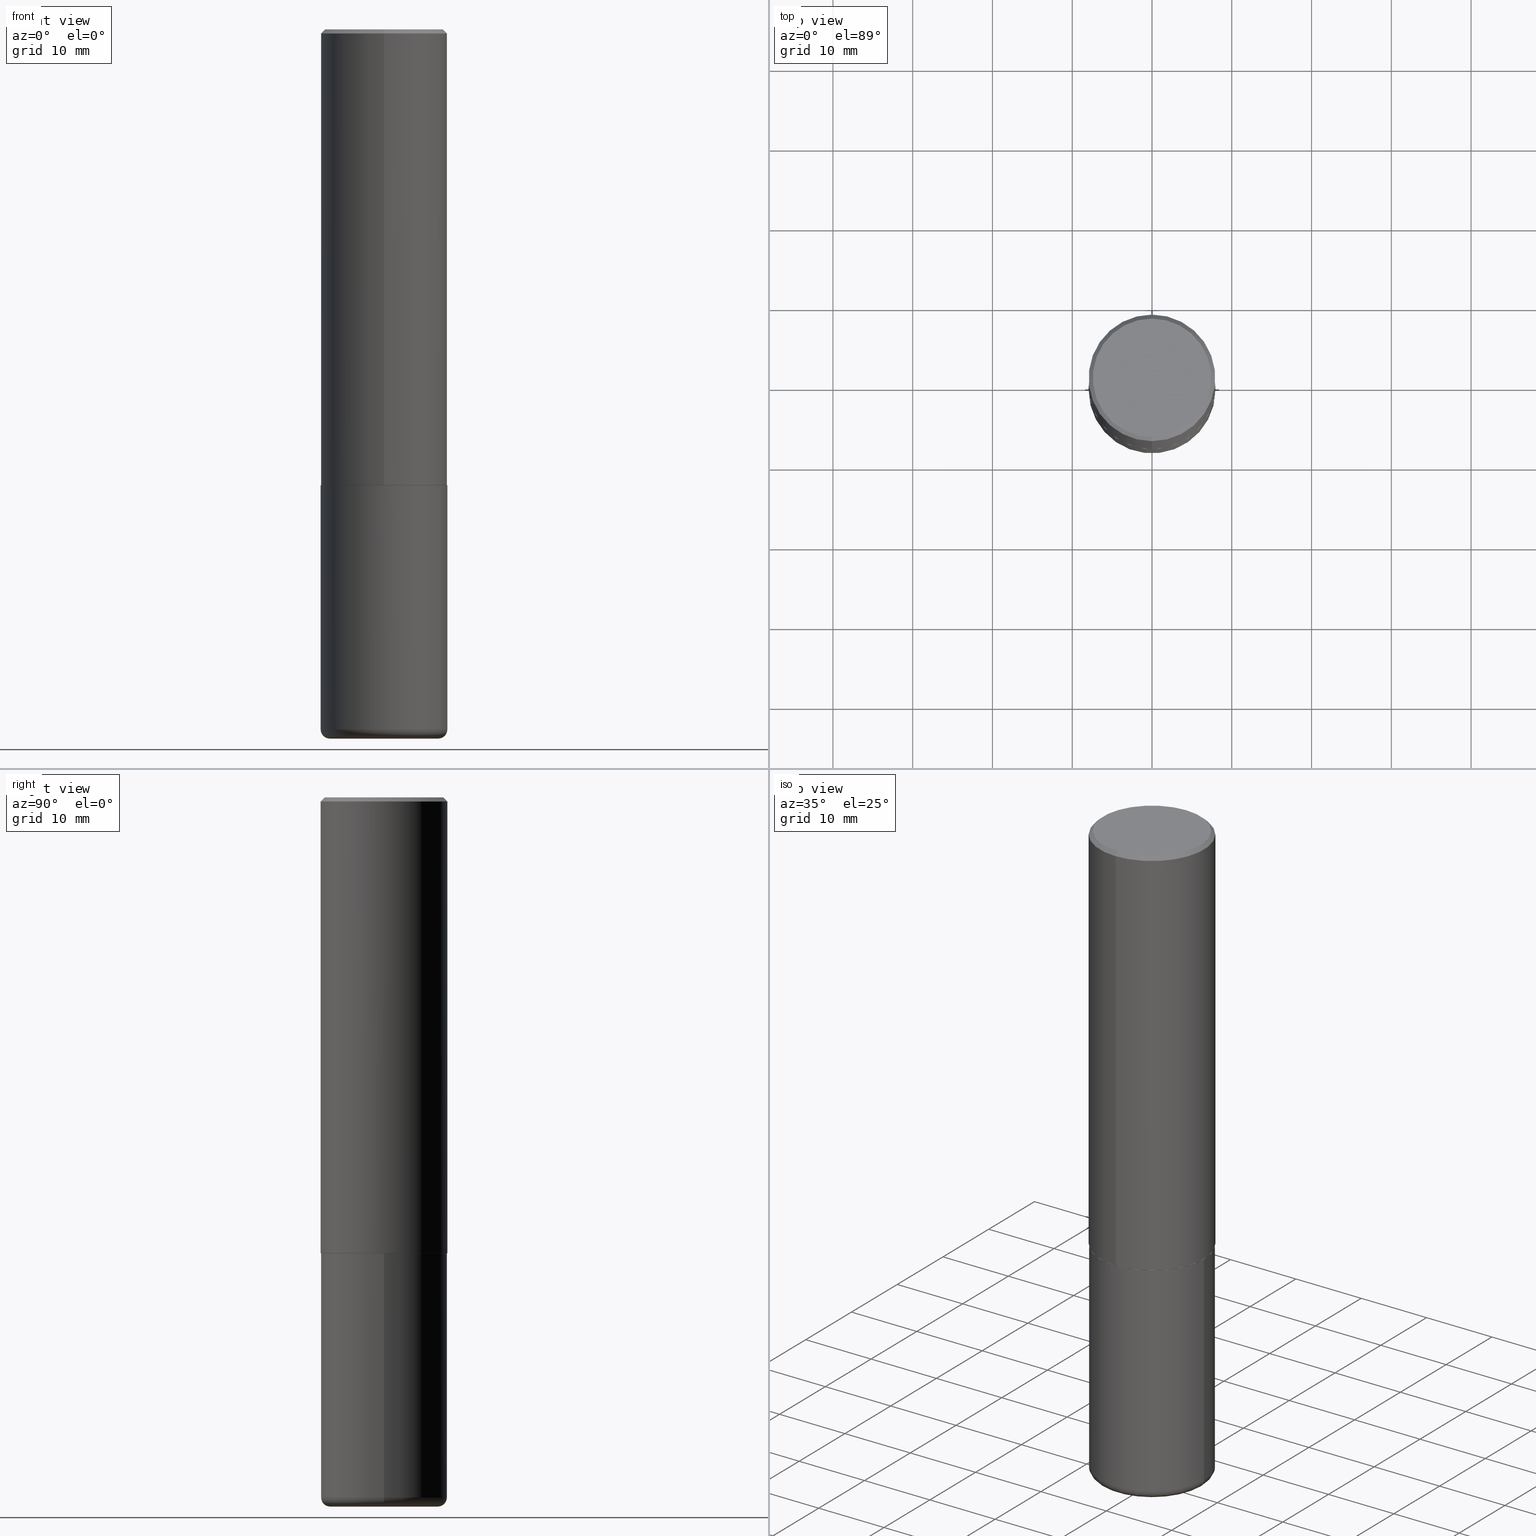
[diagram: canonical four-view strip — front | top / right | iso, engineering-drawing reading convention]
A machine part, canonical four-view strip (front | top / right | iso — engineering-drawing reading convention). The complete STEP part file that produces these views, byte-faithful:
ISO-10303-21;
HEADER;
FILE_DESCRIPTION (( 'STEP AP203' ),
    '1' );
FILE_NAME ('38280.STEP',
    '2024-03-02T20:38:31',
    ( '' ),
    ( '' ),
    'SwSTEP 2.0',
    'SolidWorks 2023',
    '' );
FILE_SCHEMA (( 'CONFIG_CONTROL_DESIGN' ));
ENDSEC;

DATA;
#1 = DIRECTION ( 'NONE',  ( 2.446270449397526442E-29, -3.490333340136305154E-15, -1.000000000000000000 ) ) ;
#2 = DIRECTION ( 'NONE',  ( -6.982962677686265922E-15, -1.000000000000000000, 3.507991003100177457E-15 ) ) ;
#3 = ADVANCED_BREP_SHAPE_REPRESENTATION ( '38280', ( #76, #218, #415 ), #137 ) ;
#4 = CIRCLE ( 'NONE', #255, 0.3125000000000000000 ) ;
#5 = EDGE_CURVE ( 'NONE', #77, #182, #117, .T. ) ;
#6 = DIRECTION ( 'NONE',  ( -2.446270449397526442E-29, 3.490333340136305154E-15, 1.000000000000000000 ) ) ;
#7 = DATE_AND_TIME ( #203, #303 ) ;
#8 = ORIENTED_EDGE ( 'NONE', *, *, #45, .T. ) ;
#9 = CARTESIAN_POINT ( 'NONE',  ( 5.502304813916556222E-29, -7.855833012397075293E-15, -2.249999999999999556 ) ) ;
#10 = VERTEX_POINT ( 'NONE', #189 ) ;
#11 = PRODUCT_DEFINITION_FORMATION_WITH_SPECIFIED_SOURCE ( 'ANY', '', #362, .NOT_KNOWN. ) ;
#12 =( CONVERSION_BASED_UNIT ( 'INCH', #332 ) LENGTH_UNIT ( ) NAMED_UNIT ( #245 ) );
#13 = VERTEX_POINT ( 'NONE', #374 ) ;
#14 = PERSON_AND_ORGANIZATION_ROLE ( 'creator' ) ;
#15 = ORIENTED_EDGE ( 'NONE', *, *, #334, .T. ) ;
#16 = DIRECTION ( 'NONE',  ( 2.438088387897960049E-29, -3.491481338843145188E-15, -1.000000000000000000 ) ) ;
#17 = EDGE_CURVE ( 'NONE', #377, #379, #145, .T. ) ;
#18 = VECTOR ( 'NONE', #236, 39.37007874015748143 ) ;
#19 = ORIENTED_EDGE ( 'NONE', *, *, #355, .T. ) ;
#20 = PERSON ( 'UNSPECIFIED', 'UNSPECIFIED', 'UNSPECIFIED', ('UNSPECIFIED'), ('UNSPECIFIED'), ('UNSPECIFIED') ) ;
#21 = ORIENTED_EDGE ( 'NONE', *, *, #190, .T. ) ;
#22 = ORIENTED_EDGE ( 'NONE', *, *, #62, .T. ) ;
#23 = EDGE_CURVE ( 'NONE', #312, #274, #383, .T. ) ;
#24 = CARTESIAN_POINT ( 'NONE',  ( 2.213340621892766504E-15, 0.3114999999999921720, -2.250000000000000888 ) ) ;
#25 = DIRECTION ( 'NONE',  ( 1.000000000000000000, -6.982962677686265133E-15, 0.000000000000000000 ) ) ;
#26 = CIRCLE ( 'NONE', #128, 0.2924999999999999267 ) ;
#27 = PLANE ( 'NONE',  #200 ) ;
#28 = DIRECTION ( 'NONE',  ( -2.446270449397526442E-29, 3.490333340136305154E-15, 1.000000000000000000 ) ) ;
#29 = DIRECTION ( 'NONE',  ( -6.982962677686265133E-15, -1.000000000000000000, 3.490333340136304366E-15 ) ) ;
#30 = AXIS2_PLACEMENT_3D ( 'NONE', #82, #373, #131 ) ;
#31 = DIRECTION ( 'NONE',  ( -2.446270449397526442E-29, 3.490333340136305154E-15, 1.000000000000000000 ) ) ;
#32 = CARTESIAN_POINT ( 'NONE',  ( 4.892540898795069594E-31, -6.980666680272634172E-17, -0.02000000000000006981 ) ) ;
#33 = APPROVAL ( #149, 'UNSPECIFIED' ) ;
#34 = AXIS2_PLACEMENT_3D ( 'NONE', #286, #160, #233 ) ;
#35 = SECURITY_CLASSIFICATION ( '', '', #107 ) ;
#36 = ORIENTED_EDGE ( 'NONE', *, *, #393, .F. ) ;
#37 = DIRECTION ( 'NONE',  ( -4.851104656540959542E-15, -0.7071067811865493491, -0.7071067811865457964 ) ) ;
#38 = PERSON_AND_ORGANIZATION ( #20, #407 ) ;
#39 = ORIENTED_EDGE ( 'NONE', *, *, #62, .F. ) ;
#40 = AXIS2_PLACEMENT_3D ( 'NONE', #262, #16, #151 ) ;
#41 = CC_DESIGN_DATE_AND_TIME_ASSIGNMENT ( #329, #140, ( #289 ) ) ;
#42 = EDGE_LOOP ( 'NONE', ( #410, #395, #51, #302 ) ) ;
#43 = COORDINATED_UNIVERSAL_TIME_OFFSET ( 5, 0, .BEHIND. ) ;
#44 = ORIENTED_EDGE ( 'NONE', *, *, #297, .T. ) ;
#45 = EDGE_CURVE ( 'NONE', #338, #278, #159, .T. ) ;
#46 = CARTESIAN_POINT ( 'NONE',  ( 2.220446049250313475E-15, 0.3125000000000001665, -1.090729168792595755E-15 ) ) ;
#47 = AXIS2_PLACEMENT_3D ( 'NONE', #331, #96, #198 ) ;
#48 = SHAPE_DEFINITION_REPRESENTATION ( #69, #3 ) ;
#49 = EDGE_LOOP ( 'NONE', ( #313, #177, #184, #307 ) ) ;
#50 = CARTESIAN_POINT ( 'NONE',  ( 4.892540898795069594E-31, -6.980666680272634172E-17, -0.02000000000000006981 ) ) ;
#51 = ORIENTED_EDGE ( 'NONE', *, *, #91, .T. ) ;
#52 = ORIENTED_EDGE ( 'NONE', *, *, #246, .F. ) ;
#53 = FACE_OUTER_BOUND ( 'NONE', #359, .T. ) ;
#54 = AXIS2_PLACEMENT_3D ( 'NONE', #175, #6, #243 ) ;
#55 = CONICAL_SURFACE ( 'NONE', #34, 0.3114999999999999991, 0.7853981633974141952 ) ;
#56 = DIRECTION ( 'NONE',  ( -6.982962677686265922E-15, -1.000000000000000000, 3.496765431890253764E-15 ) ) ;
#57 = ADVANCED_FACE ( 'NONE', ( #125 ), #339, .F. ) ;
#58 = CARTESIAN_POINT ( 'NONE',  ( 0.2675000000000000155, -1.393101054198414437E-14, -3.454999999999999627 ) ) ;
#59 = AXIS2_PLACEMENT_3D ( 'NONE', #259, #391, #97 ) ;
#60 = LOCAL_TIME ( 15, 38, 31.00000000000000000, #43 ) ;
#61 = CYLINDRICAL_SURFACE ( 'NONE', #291, 0.3125000000000001665 ) ;
#62 = EDGE_CURVE ( 'NONE', #13, #182, #87, .T. ) ;
#63 = DIRECTION ( 'NONE',  ( 2.446270449397526442E-29, -3.490333340136305154E-15, -1.000000000000000000 ) ) ;
#64 = DIRECTION ( 'NONE',  ( -2.446270449397526442E-29, 3.490333340136305154E-15, 1.000000000000000000 ) ) ;
#65 = COORDINATED_UNIVERSAL_TIME_OFFSET ( 5, 0, .BEHIND. ) ;
#66 = EDGE_LOOP ( 'NONE', ( #187, #19, #411, #108 ) ) ;
#67 = CIRCLE ( 'NONE', #204, 0.3125000000000000000 ) ;
#68 = ADVANCED_FACE ( 'NONE', ( #115 ), #324, .T. ) ;
#69 = PRODUCT_DEFINITION_SHAPE ( 'NONE', 'NONE',  #289 ) ;
#70 = CARTESIAN_POINT ( 'NONE',  ( 0.3125000000000000000, -1.003800884917403364E-14, -2.249999999999999556 ) ) ;
#71 = CARTESIAN_POINT ( 'NONE',  ( 5.504108511144434074E-29, -7.853250015306685809E-15, -2.249999999999999556 ) ) ;
#72 = PERSON_AND_ORGANIZATION_ROLE ( 'design_owner' ) ;
#73 = DIRECTION ( 'NONE',  ( -2.445468806185136597E-29, 3.491481338843145583E-15, 1.000000000000000000 ) ) ;
#74 = CIRCLE ( 'NONE', #173, 0.04500000000000013711 ) ;
#75 = DIRECTION ( 'NONE',  ( 0.000000000000000000, 0.000000000000000000, 1.000000000000000000 ) ) ;
#76 = MANIFOLD_SOLID_BREP ( 'Body-Move/Copy2[1]', #271 ) ;
#77 = VERTEX_POINT ( 'NONE', #304 ) ;
#78 = ADVANCED_FACE ( 'NONE', ( #345 ), #378, .T. ) ;
#79 = DIRECTION ( 'NONE',  ( -4.937700262164378437E-15, -0.7071067811865208164, 0.7071067811865739960 ) ) ;
#80 = VECTOR ( 'NONE', #260, 39.37007874015748854 ) ;
#81 = CLOSED_SHELL ( 'NONE', ( #178, #194, #409, #118, #227, #256, #280, #364 ) ) ;
#82 = CARTESIAN_POINT ( 'NONE',  ( 5.501662240695034719E-29, -7.849759681966548232E-15, -2.248999999999999222 ) ) ;
#83 = PERSON_AND_ORGANIZATION ( #20, #407 ) ;
#84 = ORIENTED_EDGE ( 'NONE', *, *, #334, .F. ) ;
#85 = EDGE_LOOP ( 'NONE', ( #298, #36 ) ) ;
#86 = CARTESIAN_POINT ( 'NONE',  ( -7.227211954301492276E-46, 1.031177024868314748E-31, 2.954379780895211224E-17 ) ) ;
#87 = CIRCLE ( 'NONE', #413, 0.3125000000000000000 ) ;
#88 = CC_DESIGN_PERSON_AND_ORGANIZATION_ASSIGNMENT ( #248, #354, ( #35 ) ) ;
#89 = DIRECTION ( 'NONE',  ( 2.438088387897960049E-29, -3.491481338843145188E-15, -1.000000000000000000 ) ) ;
#90 = LINE ( 'NONE', #24, #80 ) ;
#91 = EDGE_CURVE ( 'NONE', #377, #306, #315, .T. ) ;
#92 = DIRECTION ( 'NONE',  ( 1.000000000000000000, -6.982962677686269077E-15, 0.000000000000000000 ) ) ;
#93 = LINE ( 'NONE', #169, #18 ) ;
#94 = AXIS2_PLACEMENT_3D ( 'NONE', #228, #310, #25 ) ;
#95 = FACE_OUTER_BOUND ( 'NONE', #254, .T. ) ;
#96 = DIRECTION ( 'NONE',  ( -2.445468806185136597E-29, 3.491481338843145583E-15, 1.000000000000000000 ) ) ;
#97 = DIRECTION ( 'NONE',  ( 1.000000000000000000, -6.982962677686265922E-15, 4.883557194083112340E-29 ) ) ;
#98 = DIRECTION ( 'NONE',  ( -2.445468806185136597E-29, 3.491481338843145583E-15, 1.000000000000000000 ) ) ;
#99 = ORIENTED_EDGE ( 'NONE', *, *, #23, .T. ) ;
#100 = PLANE ( 'NONE',  #375 ) ;
#101 = APPROVAL_DATE_TIME ( #300, #229 ) ;
#102 = EDGE_CURVE ( 'NONE', #306, #274, #123, .T. ) ;
#103 = CIRCLE ( 'NONE', #136, 0.3114999999999999991 ) ;
#104 = FACE_OUTER_BOUND ( 'NONE', #85, .T. ) ;
#105 = APPROVAL_STATUS ( 'not_yet_approved' ) ;
#106 = ORIENTED_EDGE ( 'NONE', *, *, #265, .T. ) ;
#107 = SECURITY_CLASSIFICATION_LEVEL ( 'unclassified' ) ;
#108 = ORIENTED_EDGE ( 'NONE', *, *, #45, .F. ) ;
#109 =( NAMED_UNIT ( * ) SI_UNIT ( $, .STERADIAN. ) SOLID_ANGLE_UNIT ( ) );
#110 = ORIENTED_EDGE ( 'NONE', *, *, #382, .T. ) ;
#111 = DIRECTION ( 'NONE',  ( 6.982962677686265922E-15, 1.000000000000000000, -3.490333340136305154E-15 ) ) ;
#112 = AXIS2_PLACEMENT_3D ( 'NONE', #58, #192, #414 ) ;
#113 = CC_DESIGN_PERSON_AND_ORGANIZATION_ASSIGNMENT ( #399, #14, ( #289 ) ) ;
#114 = APPROVAL_ROLE ( '' ) ;
#115 = FACE_OUTER_BOUND ( 'NONE', #139, .T. ) ;
#116 = ORIENTED_EDGE ( 'NONE', *, *, #219, .T. ) ;
#117 = LINE ( 'NONE', #46, #321 ) ;
#118 = ADVANCED_FACE ( 'NONE', ( #164 ), #165, .T. ) ;
#119 = CIRCLE ( 'NONE', #129, 0.3125000000000000000 ) ;
#120 = CC_DESIGN_SECURITY_CLASSIFICATION ( #35, ( #11 ) ) ;
#121 = VERTEX_POINT ( 'NONE', #263 ) ;
#122 = DIRECTION ( 'NONE',  ( -2.446270449397526442E-29, 3.490333340136305154E-15, 1.000000000000000000 ) ) ;
#123 = LINE ( 'NONE', #261, #346 ) ;
#124 = CALENDAR_DATE ( 2024, 2, 3 ) ;
#125 = FACE_OUTER_BOUND ( 'NONE', #183, .T. ) ;
#126 = UNCERTAINTY_MEASURE_WITH_UNIT (LENGTH_MEASURE( 1.000000000000000082E-05 ), #12, 'distance_accuracy_value', 'NONE');
#127 = CARTESIAN_POINT ( 'NONE',  ( 8.559140821647976968E-29, -1.222018468595100934E-14, -3.500000000000000000 ) ) ;
#128 = AXIS2_PLACEMENT_3D ( 'NONE', #385, #64, #247 ) ;
#129 = AXIS2_PLACEMENT_3D ( 'NONE', #344, #98, #241 ) ;
#130 = DIRECTION ( 'NONE',  ( -2.445468806185136597E-29, 3.491481338843145583E-15, 1.000000000000000000 ) ) ;
#131 = DIRECTION ( 'NONE',  ( -6.982962677686265922E-15, -1.000000000000000000, 3.496765431890253764E-15 ) ) ;
#132 = CARTESIAN_POINT ( 'NONE',  ( -0.2675000000000000155, -1.008105242212274537E-14, -3.500000000000000000 ) ) ;
#133 = APPLICATION_CONTEXT ( 'configuration controlled 3d designs of mechanical parts and assemblies' ) ;
#134 = DIRECTION ( 'NONE',  ( -2.446270449397526161E-29, 3.490333340136305154E-15, 1.000000000000000000 ) ) ;
#135 = CARTESIAN_POINT ( 'NONE',  ( 5.504108511144434074E-29, -7.853250015306685809E-15, -2.249999999999999556 ) ) ;
#136 = AXIS2_PLACEMENT_3D ( 'NONE', #71, #209, #2 ) ;
#137 =( GEOMETRIC_REPRESENTATION_CONTEXT ( 3 ) GLOBAL_UNCERTAINTY_ASSIGNED_CONTEXT ( ( #126 ) ) GLOBAL_UNIT_ASSIGNED_CONTEXT ( ( #12, #292, #109 ) ) REPRESENTATION_CONTEXT ( 'NONE', 'WORKASPACE' ) );
#138 = APPLICATION_PROTOCOL_DEFINITION ( 'international standard', 'config_control_design', 1994, #384 ) ;
#139 = EDGE_LOOP ( 'NONE', ( #277, #295, #84, #403 ) ) ;
#140 = DATE_TIME_ROLE ( 'creation_date' ) ;
#141 = ORIENTED_EDGE ( 'NONE', *, *, #297, .F. ) ;
#142 = DIRECTION ( 'NONE',  ( 4.937700262164543309E-15, 0.7071067811865444641, -0.7071067811865506814 ) ) ;
#143 = VECTOR ( 'NONE', #142, 39.37007874015748143 ) ;
#144 = CC_DESIGN_APPROVAL ( #201, ( #35 ) ) ;
#145 = CIRCLE ( 'NONE', #257, 0.2675000000000000155 ) ;
#146 = DIRECTION ( 'NONE',  ( -6.982962677686265922E-15, -1.000000000000000000, 3.490333340136305154E-15 ) ) ;
#147 = DATE_AND_TIME ( #238, #224 ) ;
#148 = ORIENTED_EDGE ( 'NONE', *, *, #17, .F. ) ;
#149 = APPROVAL_STATUS ( 'not_yet_approved' ) ;
#150 = ORIENTED_EDGE ( 'NONE', *, *, #186, .F. ) ;
#151 = DIRECTION ( 'NONE',  ( -1.000000000000000000, 6.982962677686265922E-15, -4.876176775795935793E-29 ) ) ;
#152 = CIRCLE ( 'NONE', #212, 0.2924999999999999267 ) ;
#153 = ORIENTED_EDGE ( 'NONE', *, *, #199, .F. ) ;
#154 = DIRECTION ( 'NONE',  ( -2.446270449397526161E-29, 3.490333340136305154E-15, 1.000000000000000000 ) ) ;
#155 = ORIENTED_EDGE ( 'NONE', *, *, #393, .T. ) ;
#156 = CARTESIAN_POINT ( 'NONE',  ( 0.2675000000000000155, -1.408812720223208600E-14, -3.500000000000000000 ) ) ;
#157 = TOROIDAL_SURFACE ( 'NONE', #59, 0.2675000000000000155, 0.04500000000000010242 ) ;
#158 = LOCAL_TIME ( 15, 38, 31.00000000000000000, #176 ) ;
#159 = LINE ( 'NONE', #282, #357 ) ;
#160 = DIRECTION ( 'NONE',  ( -2.446270449397526442E-29, 3.490333340136305154E-15, 1.000000000000000000 ) ) ;
#161 = CC_DESIGN_PERSON_AND_ORGANIZATION_ASSIGNMENT ( #402, #294, ( #11 ) ) ;
#162 = DIRECTION ( 'NONE',  ( -6.982962677686266711E-15, -1.000000000000000000, 3.490333340136305549E-15 ) ) ;
#163 = CARTESIAN_POINT ( 'NONE',  ( 0.000000000000000000, 0.000000000000000000, 0.000000000000000000 ) ) ;
#164 = FACE_OUTER_BOUND ( 'NONE', #205, .T. ) ;
#165 = CONICAL_SURFACE ( 'NONE', #398, 0.3125000000000000000, 0.7853981633974473908 ) ;
#166 = CARTESIAN_POINT ( 'NONE',  ( 2.182175836776958741E-15, 0.3124999999999999445, -0.02000000000000116268 ) ) ;
#167 = EDGE_CURVE ( 'NONE', #379, #253, #74, .T. ) ;
#168 = LINE ( 'NONE', #328, #319 ) ;
#169 = CARTESIAN_POINT ( 'NONE',  ( -0.3125000000000000000, 2.220446049250313081E-15, -1.537167215704658232E-29 ) ) ;
#170 = CC_DESIGN_DATE_AND_TIME_ASSIGNMENT ( #7, #225, ( #35 ) ) ;
#171 = DIRECTION ( 'NONE',  ( -2.445468806185136597E-29, 3.491481338843145583E-15, 1.000000000000000000 ) ) ;
#172 = DIRECTION ( 'NONE',  ( 6.982962677686265133E-15, 1.000000000000000000, -3.496765431890256920E-15 ) ) ;
#173 = AXIS2_PLACEMENT_3D ( 'NONE', #381, #320, #386 ) ;
#174 = EDGE_CURVE ( 'NONE', #121, #10, #152, .T. ) ;
#175 = CARTESIAN_POINT ( 'NONE',  ( 5.504108511144434074E-29, -7.853250015306685809E-15, -2.249999999999999556 ) ) ;
#176 = COORDINATED_UNIVERSAL_TIME_OFFSET ( 5, 0, .BEHIND. ) ;
#177 = ORIENTED_EDGE ( 'NONE', *, *, #418, .T. ) ;
#178 = ADVANCED_FACE ( 'NONE', ( #231 ), #55, .T. ) ;
#179 = DIRECTION ( 'NONE',  ( -2.446270449397526161E-29, 3.490333340136305154E-15, 1.000000000000000000 ) ) ;
#180 = ORIENTED_EDGE ( 'NONE', *, *, #371, .T. ) ;
#181 = PERSON_AND_ORGANIZATION ( #20, #407 ) ;
#182 = VERTEX_POINT ( 'NONE', #166 ) ;
#183 = EDGE_LOOP ( 'NONE', ( #258, #99 ) ) ;
#184 = ORIENTED_EDGE ( 'NONE', *, *, #102, .T. ) ;
#185 = AXIS2_PLACEMENT_3D ( 'NONE', #283, #89, #316 ) ;
#186 = EDGE_CURVE ( 'NONE', #379, #377, #230, .T. ) ;
#187 = ORIENTED_EDGE ( 'NONE', *, *, #317, .T. ) ;
#188 = ORIENTED_EDGE ( 'NONE', *, *, #102, .F. ) ;
#189 = CARTESIAN_POINT ( 'NONE',  ( 2.112346210000095443E-15, 0.2924999999999999267, -9.913787041809170300E-16 ) ) ;
#190 = EDGE_CURVE ( 'NONE', #278, #77, #290, .T. ) ;
#191 = AXIS2_PLACEMENT_3D ( 'NONE', #9, #171, #361 ) ;
#192 = DIRECTION ( 'NONE',  ( -6.982962677686266711E-15, -1.000000000000000000, 3.491481338843145583E-15 ) ) ;
#193 = APPROVAL_PERSON_ORGANIZATION ( #365, #33, #404 ) ;
#194 = ADVANCED_FACE ( 'NONE', ( #352 ), #61, .T. ) ;
#195 = DIRECTION ( 'NONE',  ( -2.446270449397526442E-29, 3.490333340136305154E-15, 1.000000000000000000 ) ) ;
#196 = DIRECTION ( 'NONE',  ( -2.445468806185136877E-29, 3.491481338843145188E-15, 1.000000000000000000 ) ) ;
#197 = CARTESIAN_POINT ( 'NONE',  ( -2.175192874099216718E-15, -0.3115000000000078817, -2.249999999999998668 ) ) ;
#198 = DIRECTION ( 'NONE',  ( 1.000000000000000000, -6.982962677686265922E-15, 4.883557194083112340E-29 ) ) ;
#199 = EDGE_CURVE ( 'NONE', #10, #121, #26, .T. ) ;
#200 = AXIS2_PLACEMENT_3D ( 'NONE', #293, #360, #111 ) ;
#201 = APPROVAL ( #220, 'UNSPECIFIED' ) ;
#202 = CARTESIAN_POINT ( 'NONE',  ( -0.3125000000000000555, -9.842621976452751474E-15, -3.454999999999999627 ) ) ;
#203 = CALENDAR_DATE ( 2024, 2, 3 ) ;
#204 = AXIS2_PLACEMENT_3D ( 'NONE', #380, #130, #349 ) ;
#205 = EDGE_LOOP ( 'NONE', ( #405, #153, #106, #180 ) ) ;
#206 = APPROVAL_ROLE ( '' ) ;
#207 = ORIENTED_EDGE ( 'NONE', *, *, #174, .T. ) ;
#208 = CARTESIAN_POINT ( 'NONE',  ( 5.504108511144434074E-29, -7.853250015306685809E-15, -2.249999999999999556 ) ) ;
#209 = DIRECTION ( 'NONE',  ( -2.446270449397526442E-29, 3.490333340136305154E-15, 1.000000000000000000 ) ) ;
#210 = CALENDAR_DATE ( 2024, 2, 3 ) ;
#211 = ORIENTED_EDGE ( 'NONE', *, *, #371, .F. ) ;
#212 = AXIS2_PLACEMENT_3D ( 'NONE', #86, #28, #162 ) ;
#213 = DIRECTION ( 'NONE',  ( -2.446270449397526442E-29, 3.490333340136305154E-15, 1.000000000000000000 ) ) ;
#214 = LOCAL_TIME ( 15, 38, 31.00000000000000000, #342 ) ;
#215 = COORDINATED_UNIVERSAL_TIME_OFFSET ( 5, 0, .BEHIND. ) ;
#216 = DATE_AND_TIME ( #124, #214 ) ;
#217 = ORIENTED_EDGE ( 'NONE', *, *, #5, .T. ) ;
#218 = MANIFOLD_SOLID_BREP ( 'Body-Move/Copy2[2]', #81 ) ;
#219 = EDGE_CURVE ( 'NONE', #121, #13, #168, .T. ) ;
#220 = APPROVAL_STATUS ( 'not_yet_approved' ) ;
#221 = DIRECTION ( 'NONE',  ( -2.446270449397526442E-29, 3.490333340136305154E-15, 1.000000000000000000 ) ) ;
#222 = DIRECTION ( 'NONE',  ( 1.000000000000000000, -6.982962677686266711E-15, 4.876176775795936353E-29 ) ) ;
#223 = VECTOR ( 'NONE', #179, 39.37007874015748143 ) ;
#224 = LOCAL_TIME ( 15, 38, 31.00000000000000000, #215 ) ;
#225 = DATE_TIME_ROLE ( 'classification_date' ) ;
#226 = EDGE_LOOP ( 'NONE', ( #21, #217, #39, #141 ) ) ;
#227 = ADVANCED_FACE ( 'NONE', ( #333 ), #269, .T. ) ;
#228 = CARTESIAN_POINT ( 'NONE',  ( 5.502304813916556222E-29, -7.855833012397075293E-15, -2.249999999999999556 ) ) ;
#229 = APPROVAL ( #105, 'UNSPECIFIED' ) ;
#230 = CIRCLE ( 'NONE', #389, 0.2675000000000000155 ) ;
#231 = FACE_OUTER_BOUND ( 'NONE', #66, .T. ) ;
#232 = CYLINDRICAL_SURFACE ( 'NONE', #270, 0.3125000000000000000 ) ;
#233 = DIRECTION ( 'NONE',  ( -6.982962677686265922E-15, -1.000000000000000000, 3.507991003100177457E-15 ) ) ;
#234 = CARTESIAN_POINT ( 'NONE',  ( 5.501662240695034719E-29, -7.849759681966548232E-15, -2.248999999999999222 ) ) ;
#235 = AXIS2_PLACEMENT_3D ( 'NONE', #308, #73, #222 ) ;
#236 = DIRECTION ( 'NONE',  ( -2.445468806185136877E-29, 3.491481338843145188E-15, 1.000000000000000000 ) ) ;
#237 = DIRECTION ( 'NONE',  ( -6.982962677686265922E-15, -1.000000000000000000, 3.507991003100177457E-15 ) ) ;
#238 = CALENDAR_DATE ( 2024, 2, 3 ) ;
#239 = CC_DESIGN_PERSON_AND_ORGANIZATION_ASSIGNMENT ( #181, #72, ( #362 ) ) ;
#240 = ORIENTED_EDGE ( 'NONE', *, *, #199, .T. ) ;
#241 = DIRECTION ( 'NONE',  ( 1.000000000000000000, -6.982962677686269077E-15, 0.000000000000000000 ) ) ;
#242 = CIRCLE ( 'NONE', #191, 0.3125000000000000000 ) ;
#243 = DIRECTION ( 'NONE',  ( -6.982962677686265922E-15, -1.000000000000000000, 3.507991003100177457E-15 ) ) ;
#244 = CARTESIAN_POINT ( 'NONE',  ( 0.000000000000000000, 0.000000000000000000, 0.000000000000000000 ) ) ;
#245 = DIMENSIONAL_EXPONENTS ( 1.000000000000000000, 0.000000000000000000, 0.000000000000000000, 0.000000000000000000, 0.000000000000000000, 0.000000000000000000, 0.000000000000000000 ) ;
#246 = EDGE_CURVE ( 'NONE', #274, #312, #242, .T. ) ;
#247 = DIRECTION ( 'NONE',  ( -6.982962677686266711E-15, -1.000000000000000000, 3.490333340136305549E-15 ) ) ;
#248 = PERSON_AND_ORGANIZATION ( #20, #407 ) ;
#249 = DIRECTION ( 'NONE',  ( 1.000000000000000000, 0.000000000000000000, 0.000000000000000000 ) ) ;
#250 = AXIS2_PLACEMENT_3D ( 'NONE', #135, #122, #237 ) ;
#251 = ORIENTED_EDGE ( 'NONE', *, *, #323, .F. ) ;
#252 = APPROVAL_DATE_TIME ( #216, #201 ) ;
#253 = VERTEX_POINT ( 'NONE', #202 ) ;
#254 = EDGE_LOOP ( 'NONE', ( #341, #155, #8, #251 ) ) ;
#255 = AXIS2_PLACEMENT_3D ( 'NONE', #50, #213, #335 ) ;
#256 = ADVANCED_FACE ( 'NONE', ( #95 ), #301, .T. ) ;
#257 = AXIS2_PLACEMENT_3D ( 'NONE', #337, #279, #412 ) ;
#258 = ORIENTED_EDGE ( 'NONE', *, *, #246, .T. ) ;
#259 = CARTESIAN_POINT ( 'NONE',  ( 8.449094725369646135E-29, -1.206306802570306613E-14, -3.454999999999999627 ) ) ;
#260 = DIRECTION ( 'NONE',  ( 5.024295867787889629E-15, 0.7071067811865257013, 0.7071067811865691111 ) ) ;
#261 = CARTESIAN_POINT ( 'NONE',  ( 0.3125000000000000000, -2.182175836776958347E-15, 1.523805242436230075E-29 ) ) ;
#262 = CARTESIAN_POINT ( 'NONE',  ( 5.502304813916556222E-29, -7.855833012397075293E-15, -2.249999999999999556 ) ) ;
#263 = CARTESIAN_POINT ( 'NONE',  ( -2.075300644325887493E-15, -0.2924999999999999267, 1.050466299798821304E-15 ) ) ;
#264 = CONICAL_SURFACE ( 'NONE', #351, 0.3125000000000000000, 0.7853981633974473908 ) ;
#265 = EDGE_CURVE ( 'NONE', #10, #182, #287, .T. ) ;
#266 = MECHANICAL_CONTEXT ( 'NONE', #384, 'mechanical' ) ;
#267 = VERTEX_POINT ( 'NONE', #268 ) ;
#268 = CARTESIAN_POINT ( 'NONE',  ( 2.216893335571567797E-15, 0.3114999999999921720, -2.250000000000000888 ) ) ;
#269 = CYLINDRICAL_SURFACE ( 'NONE', #406, 0.3125000000000001665 ) ;
#270 = AXIS2_PLACEMENT_3D ( 'NONE', #163, #284, #416 ) ;
#271 = CLOSED_SHELL ( 'NONE', ( #327, #68, #57, #367, #387, #78 ) ) ;
#272 = APPROVAL_DATE_TIME ( #147, #33 ) ;
#273 = ORIENTED_EDGE ( 'NONE', *, *, #323, .T. ) ;
#274 = VERTEX_POINT ( 'NONE', #70 ) ;
#275 = CARTESIAN_POINT ( 'NONE',  ( 4.892540898795069594E-31, -6.980666680272634172E-17, -0.02000000000000006981 ) ) ;
#276 = FACE_OUTER_BOUND ( 'NONE', #49, .T. ) ;
#277 = ORIENTED_EDGE ( 'NONE', *, *, #17, .T. ) ;
#278 = VERTEX_POINT ( 'NONE', #397 ) ;
#279 = DIRECTION ( 'NONE',  ( -2.445468806185136597E-29, 3.491481338843145583E-15, 1.000000000000000000 ) ) ;
#280 = ADVANCED_FACE ( 'NONE', ( #104 ), #100, .F. ) ;
#281 = CIRCLE ( 'NONE', #250, 0.3114999999999999991 ) ;
#282 = CARTESIAN_POINT ( 'NONE',  ( -2.175192874099216718E-15, -0.3115000000000078817, -2.249999999999998668 ) ) ;
#283 = CARTESIAN_POINT ( 'NONE',  ( 8.559140821647976968E-29, -1.222018468595100934E-14, -3.500000000000000000 ) ) ;
#284 = DIRECTION ( 'NONE',  ( -2.445468806185136597E-29, 3.491481338843145583E-15, 1.000000000000000000 ) ) ;
#285 = AXIS2_PLACEMENT_3D ( 'NONE', #234, #347, #56 ) ;
#286 = CARTESIAN_POINT ( 'NONE',  ( 5.504108511144434074E-29, -7.853250015306685809E-15, -2.249999999999999556 ) ) ;
#287 = LINE ( 'NONE', #401, #143 ) ;
#288 = FACE_OUTER_BOUND ( 'NONE', #42, .T. ) ;
#289 = PRODUCT_DEFINITION ( 'UNKNOWN', '', #11, #417 ) ;
#290 = CIRCLE ( 'NONE', #285, 0.3125000000000002776 ) ;
#291 = AXIS2_PLACEMENT_3D ( 'NONE', #322, #195, #29 ) ;
#292 =( NAMED_UNIT ( * ) PLANE_ANGLE_UNIT ( ) SI_UNIT ( $, .RADIAN. ) );
#293 = CARTESIAN_POINT ( 'NONE',  ( 2.042516583223232540E-15, 0.2924999999999999267, -1.006150603085393049E-15 ) ) ;
#294 = PERSON_AND_ORGANIZATION_ROLE ( 'design_supplier' ) ;
#295 = ORIENTED_EDGE ( 'NONE', *, *, #167, .T. ) ;
#296 = DIRECTION ( 'NONE',  ( -6.982962677686265133E-15, -1.000000000000000000, 3.490333340136304366E-15 ) ) ;
#297 = EDGE_CURVE ( 'NONE', #278, #13, #356, .T. ) ;
#298 = ORIENTED_EDGE ( 'NONE', *, *, #317, .F. ) ;
#299 = CARTESIAN_POINT ( 'NONE',  ( 0.3125000000000000555, -1.424524386248002448E-14, -3.454999999999999627 ) ) ;
#300 = DATE_AND_TIME ( #394, #60 ) ;
#301 = CONICAL_SURFACE ( 'NONE', #54, 0.3114999999999999991, 0.7853981633974141952 ) ;
#302 = ORIENTED_EDGE ( 'NONE', *, *, #418, .F. ) ;
#303 = LOCAL_TIME ( 15, 38, 31.00000000000000000, #65 ) ;
#304 = CARTESIAN_POINT ( 'NONE',  ( 2.220446049250341874E-15, 0.3124999999999924505, -2.249000000000000554 ) ) ;
#305 = APPLICATION_PROTOCOL_DEFINITION ( 'international standard', 'config_control_design', 1994, #133 ) ;
#306 = VERTEX_POINT ( 'NONE', #299 ) ;
#307 = ORIENTED_EDGE ( 'NONE', *, *, #23, .F. ) ;
#308 = CARTESIAN_POINT ( 'NONE',  ( 0.000000000000000000, 0.000000000000000000, 0.000000000000000000 ) ) ;
#309 = CC_DESIGN_PERSON_AND_ORGANIZATION_ASSIGNMENT ( #336, #396, ( #11 ) ) ;
#310 = DIRECTION ( 'NONE',  ( -2.445468806185136597E-29, 3.491481338843145583E-15, 1.000000000000000000 ) ) ;
#311 = ORIENTED_EDGE ( 'NONE', *, *, #174, .F. ) ;
#312 = VERTEX_POINT ( 'NONE', #363 ) ;
#313 = ORIENTED_EDGE ( 'NONE', *, *, #382, .F. ) ;
#314 = PRODUCT_RELATED_PRODUCT_CATEGORY ( 'detail', '', ( #362 ) ) ;
#315 = CIRCLE ( 'NONE', #112, 0.04500000000000013711 ) ;
#316 = DIRECTION ( 'NONE',  ( -1.000000000000000000, 6.982962677686265922E-15, -4.876176775795935793E-29 ) ) ;
#317 = EDGE_CURVE ( 'NONE', #338, #267, #103, .T. ) ;
#318 = CARTESIAN_POINT ( 'NONE',  ( 4.892540898795069594E-31, -6.980666680272634172E-17, -0.02000000000000006981 ) ) ;
#319 = VECTOR ( 'NONE', #37, 39.37007874015748143 ) ;
#320 = DIRECTION ( 'NONE',  ( 7.105427357601001859E-15, 1.000000000000000000, -3.491481338843145583E-15 ) ) ;
#321 = VECTOR ( 'NONE', #154, 39.37007874015748143 ) ;
#322 = CARTESIAN_POINT ( 'NONE',  ( 0.000000000000000000, 0.000000000000000000, 0.000000000000000000 ) ) ;
#323 = EDGE_CURVE ( 'NONE', #77, #278, #340, .T. ) ;
#324 = TOROIDAL_SURFACE ( 'NONE', #47, 0.2675000000000000155, 0.04500000000000010242 ) ;
#325 =( LENGTH_UNIT ( ) NAMED_UNIT ( * ) SI_UNIT ( $, .METRE. ) );
#326 = EDGE_LOOP ( 'NONE', ( #15, #110, #52, #188 ) ) ;
#327 = ADVANCED_FACE ( 'NONE', ( #348 ), #232, .T. ) ;
#328 = CARTESIAN_POINT ( 'NONE',  ( -2.143905624303602824E-15, -0.3125000000000000555, -0.01999999999999897693 ) ) ;
#329 = DATE_AND_TIME ( #210, #158 ) ;
#330 = CARTESIAN_POINT ( 'NONE',  ( -2.182175836776959136E-15, -0.3125000000000001665, 1.090729168792595755E-15 ) ) ;
#331 = CARTESIAN_POINT ( 'NONE',  ( 8.449094725369646135E-29, -1.206306802570306613E-14, -3.454999999999999627 ) ) ;
#332 = LENGTH_MEASURE_WITH_UNIT ( LENGTH_MEASURE( 0.02539999999999999897 ), #325 );
#333 = FACE_OUTER_BOUND ( 'NONE', #400, .T. ) ;
#334 = EDGE_CURVE ( 'NONE', #306, #253, #67, .T. ) ;
#335 = DIRECTION ( 'NONE',  ( -6.982962677686265133E-15, -1.000000000000000000, 3.496765431890256920E-15 ) ) ;
#336 = PERSON_AND_ORGANIZATION ( #20, #407 ) ;
#337 = CARTESIAN_POINT ( 'NONE',  ( 8.559140821647976968E-29, -1.222018468595100934E-14, -3.500000000000000000 ) ) ;
#338 = VERTEX_POINT ( 'NONE', #197 ) ;
#339 = PLANE ( 'NONE',  #40 ) ;
#340 = CIRCLE ( 'NONE', #30, 0.3125000000000002776 ) ;
#341 = ORIENTED_EDGE ( 'NONE', *, *, #355, .F. ) ;
#342 = COORDINATED_UNIVERSAL_TIME_OFFSET ( 5, 0, .BEHIND. ) ;
#343 = ORIENTED_EDGE ( 'NONE', *, *, #5, .F. ) ;
#344 = CARTESIAN_POINT ( 'NONE',  ( 8.449094725369646135E-29, -1.206306802570306613E-14, -3.454999999999999627 ) ) ;
#345 = FACE_OUTER_BOUND ( 'NONE', #366, .T. ) ;
#346 = VECTOR ( 'NONE', #196, 39.37007874015748143 ) ;
#347 = DIRECTION ( 'NONE',  ( -2.446270449397526442E-29, 3.490333340136305154E-15, 1.000000000000000000 ) ) ;
#348 = FACE_OUTER_BOUND ( 'NONE', #326, .T. ) ;
#349 = DIRECTION ( 'NONE',  ( 1.000000000000000000, -6.982962677686269077E-15, 0.000000000000000000 ) ) ;
#350 = DIRECTION ( 'NONE',  ( 6.982962677686265133E-15, 1.000000000000000000, -3.496765431890256920E-15 ) ) ;
#351 = AXIS2_PLACEMENT_3D ( 'NONE', #32, #63, #172 ) ;
#352 = FACE_OUTER_BOUND ( 'NONE', #226, .T. ) ;
#353 = FACE_OUTER_BOUND ( 'NONE', #369, .T. ) ;
#354 = PERSON_AND_ORGANIZATION_ROLE ( 'classification_officer' ) ;
#355 = EDGE_CURVE ( 'NONE', #267, #77, #90, .T. ) ;
#356 = LINE ( 'NONE', #330, #223 ) ;
#357 = VECTOR ( 'NONE', #79, 39.37007874015748854 ) ;
#358 = APPROVAL_PERSON_ORGANIZATION ( #83, #201, #114 ) ;
#359 = EDGE_LOOP ( 'NONE', ( #240, #207 ) ) ;
#360 = DIRECTION ( 'NONE',  ( 2.446270449397526161E-29, -3.490333340136305154E-15, -1.000000000000000000 ) ) ;
#361 = DIRECTION ( 'NONE',  ( 1.000000000000000000, -6.982962677686265133E-15, 0.000000000000000000 ) ) ;
#362 = PRODUCT ( '38280', '38280', '', ( #266 ) ) ;
#363 = CARTESIAN_POINT ( 'NONE',  ( -0.3125000000000000000, -7.739004469799756843E-15, -2.249999999999999556 ) ) ;
#364 = ADVANCED_FACE ( 'NONE', ( #53 ), #27, .F. ) ;
#365 = PERSON_AND_ORGANIZATION ( #20, #407 ) ;
#366 = EDGE_LOOP ( 'NONE', ( #148, #150 ) ) ;
#367 = ADVANCED_FACE ( 'NONE', ( #276 ), #372, .T. ) ;
#368 = APPROVAL_PERSON_ORGANIZATION ( #38, #229, #206 ) ;
#369 = EDGE_LOOP ( 'NONE', ( #311, #116, #22, #370 ) ) ;
#370 = ORIENTED_EDGE ( 'NONE', *, *, #265, .F. ) ;
#371 = EDGE_CURVE ( 'NONE', #182, #13, #4, .T. ) ;
#372 = CYLINDRICAL_SURFACE ( 'NONE', #235, 0.3125000000000000000 ) ;
#373 = DIRECTION ( 'NONE',  ( -2.446270449397526442E-29, 3.490333340136305154E-15, 1.000000000000000000 ) ) ;
#374 = CARTESIAN_POINT ( 'NONE',  ( -2.143905624303602824E-15, -0.3125000000000000555, -0.01999999999999897693 ) ) ;
#375 = AXIS2_PLACEMENT_3D ( 'NONE', #208, #134, #146 ) ;
#376 = CC_DESIGN_APPROVAL ( #229, ( #289 ) ) ;
#377 = VERTEX_POINT ( 'NONE', #156 ) ;
#378 = PLANE ( 'NONE',  #185 ) ;
#379 = VERTEX_POINT ( 'NONE', #132 ) ;
#380 = CARTESIAN_POINT ( 'NONE',  ( 8.449094725369646135E-29, -1.206306802570306613E-14, -3.454999999999999627 ) ) ;
#381 = CARTESIAN_POINT ( 'NONE',  ( -0.2675000000000000155, -1.016236620754479763E-14, -3.454999999999999627 ) ) ;
#382 = EDGE_CURVE ( 'NONE', #253, #312, #93, .T. ) ;
#383 = CIRCLE ( 'NONE', #94, 0.3125000000000000000 ) ;
#384 = APPLICATION_CONTEXT ( 'configuration controlled 3d designs of mechanical parts and assemblies' ) ;
#385 = CARTESIAN_POINT ( 'NONE',  ( -7.227211954301492276E-46, 1.031177024868314748E-31, 2.954379780895211224E-17 ) ) ;
#386 = DIRECTION ( 'NONE',  ( -1.000000000000000000, 7.105427357601011325E-15, 0.000000000000000000 ) ) ;
#387 = ADVANCED_FACE ( 'NONE', ( #288 ), #157, .T. ) ;
#388 = DIRECTION ( 'NONE',  ( -2.445468806185136597E-29, 3.491481338843145583E-15, 1.000000000000000000 ) ) ;
#389 = AXIS2_PLACEMENT_3D ( 'NONE', #127, #388, #92 ) ;
#390 = CC_DESIGN_APPROVAL ( #33, ( #11 ) ) ;
#391 = DIRECTION ( 'NONE',  ( -2.445468806185136597E-29, 3.491481338843145583E-15, 1.000000000000000000 ) ) ;
#392 = CARTESIAN_POINT ( 'NONE',  ( 0.000000000000000000, 0.000000000000000000, 0.000000000000000000 ) ) ;
#393 = EDGE_CURVE ( 'NONE', #267, #338, #281, .T. ) ;
#394 = CALENDAR_DATE ( 2024, 2, 3 ) ;
#395 = ORIENTED_EDGE ( 'NONE', *, *, #186, .T. ) ;
#396 = PERSON_AND_ORGANIZATION_ROLE ( 'creator' ) ;
#397 = CARTESIAN_POINT ( 'NONE',  ( -2.182175836776905099E-15, -0.3125000000000081601, -2.248999999999998334 ) ) ;
#398 = AXIS2_PLACEMENT_3D ( 'NONE', #318, #1, #350 ) ;
#399 = PERSON_AND_ORGANIZATION ( #20, #407 ) ;
#400 = EDGE_LOOP ( 'NONE', ( #343, #273, #44, #211 ) ) ;
#401 = CARTESIAN_POINT ( 'NONE',  ( 2.182175836776958741E-15, 0.3124999999999999445, -0.02000000000000116268 ) ) ;
#402 = PERSON_AND_ORGANIZATION ( #20, #407 ) ;
#403 = ORIENTED_EDGE ( 'NONE', *, *, #91, .F. ) ;
#404 = APPROVAL_ROLE ( '' ) ;
#405 = ORIENTED_EDGE ( 'NONE', *, *, #219, .F. ) ;
#406 = AXIS2_PLACEMENT_3D ( 'NONE', #392, #31, #296 ) ;
#407 = ORGANIZATION ( 'UNSPECIFIED', 'UNSPECIFIED', '' ) ;
#408 = DIRECTION ( 'NONE',  ( -6.982962677686265133E-15, -1.000000000000000000, 3.496765431890256920E-15 ) ) ;
#409 = ADVANCED_FACE ( 'NONE', ( #353 ), #264, .T. ) ;
#410 = ORIENTED_EDGE ( 'NONE', *, *, #167, .F. ) ;
#411 = ORIENTED_EDGE ( 'NONE', *, *, #190, .F. ) ;
#412 = DIRECTION ( 'NONE',  ( 1.000000000000000000, -6.982962677686269077E-15, 0.000000000000000000 ) ) ;
#413 = AXIS2_PLACEMENT_3D ( 'NONE', #275, #221, #408 ) ;
#414 = DIRECTION ( 'NONE',  ( 1.000000000000000000, -6.982962677686246989E-15, 0.000000000000000000 ) ) ;
#415 = AXIS2_PLACEMENT_3D ( 'NONE', #244, #75, #249 ) ;
#416 = DIRECTION ( 'NONE',  ( 1.000000000000000000, -6.982962677686266711E-15, 4.876176775795936353E-29 ) ) ;
#417 = DESIGN_CONTEXT ( 'detailed design', #133, 'design' ) ;
#418 = EDGE_CURVE ( 'NONE', #253, #306, #119, .T. ) ;
ENDSEC;
END-ISO-10303-21;
